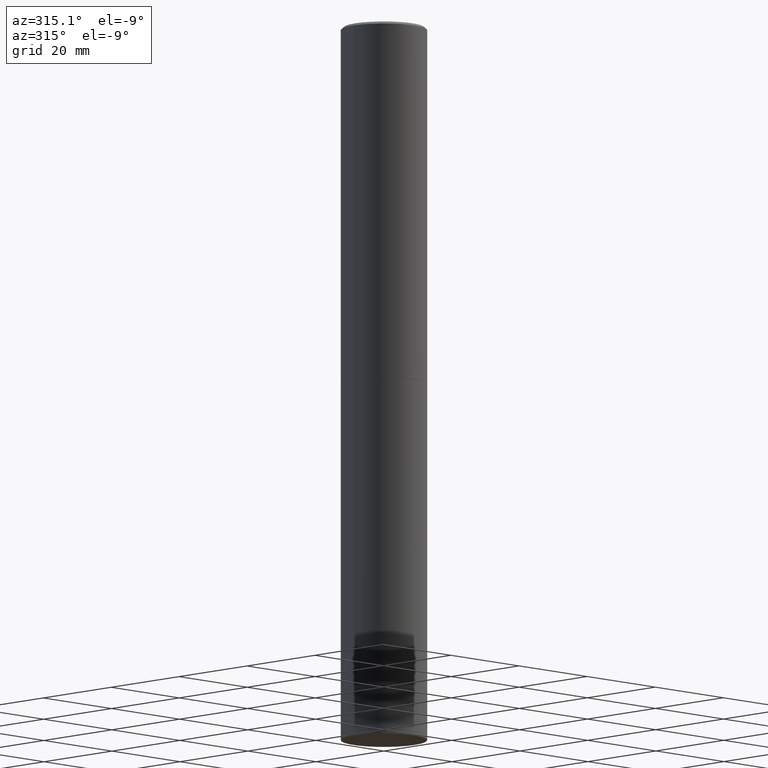
[diagram: clean part render]
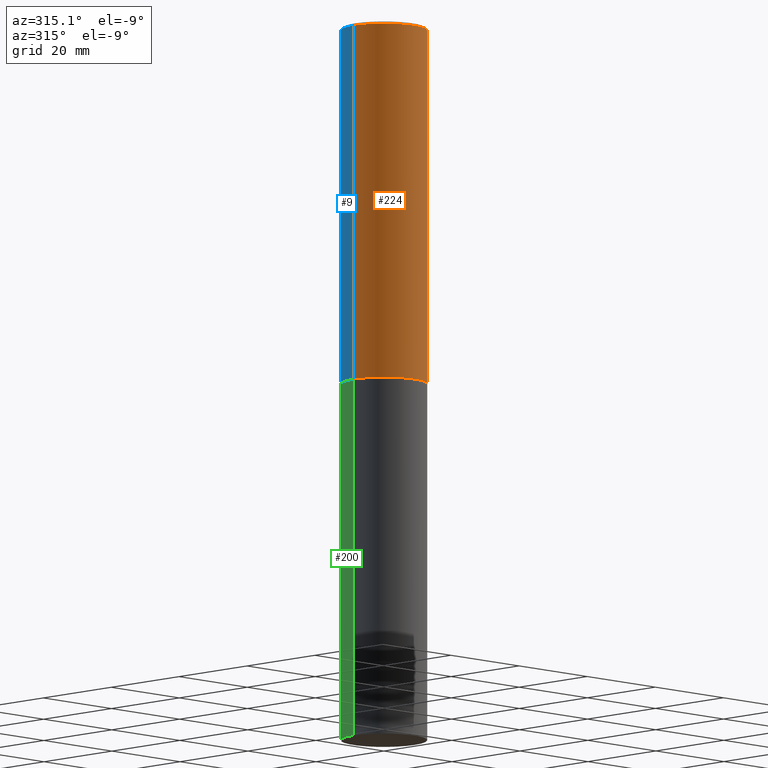
[diagram: same view with three faces highlighted in distinct colors, each labeled with its STEP entity id]
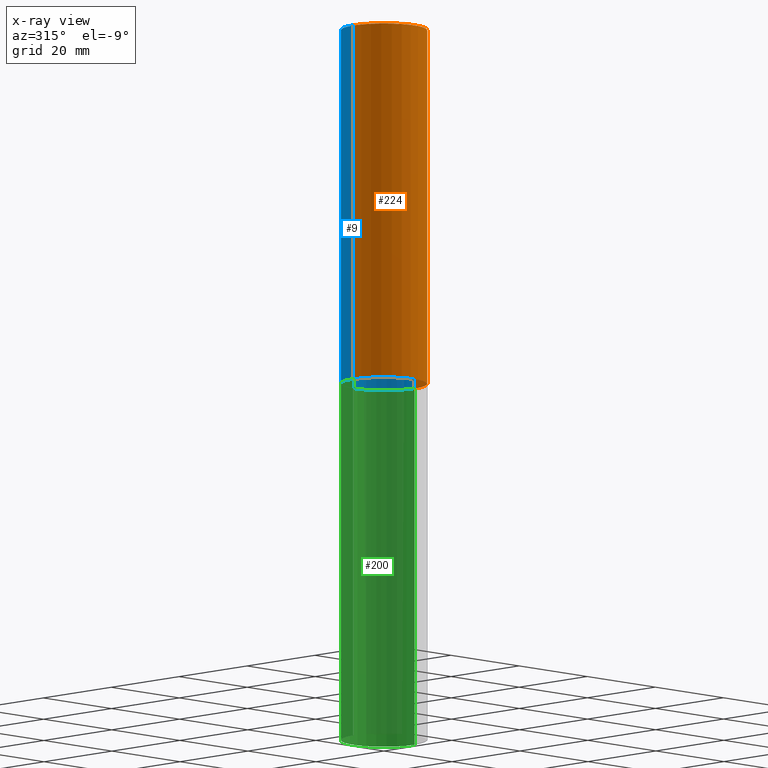
[diagram: x-ray of the same camera — body ghosted, the three highlighted faces saturated]
A machine part, auxiliary view with three faces highlighted in distinct colors.
The next image is the same camera in x-ray (body ghosted, the three faces saturated) — at least one of them is partly hidden behind the body in this view.
Their STEP definitions:

[orange] entity #224 — the highlighted cylindrical surface (partial cylindrical patch) has radius 9.0005 mm, axis along (-0, 0, 1).
#7 = VERTEX_POINT ( 'NONE', #331 ) ;
#13 = LINE ( 'NONE', #68, #166 ) ;
#47 = FACE_OUTER_BOUND ( 'NONE', #132, .T. ) ;
#56 = LINE ( 'NONE', #170, #153 ) ;
#68 = CARTESIAN_POINT ( 'NONE',  ( 0.3543499999999998873, -2.474412824838127905E-15, 1.727873240503289188E-29 ) ) ;
#74 = ORIENTED_EDGE ( 'NONE', *, *, #265, .T. ) ;
#85 = AXIS2_PLACEMENT_3D ( 'NONE', #168, #334, #249 ) ;
#103 = DIRECTION ( 'NONE',  ( -2.445468806185136597E-29, 3.491481338843145583E-15, 1.000000000000000000 ) ) ;
#104 = VERTEX_POINT ( 'NONE', #151 ) ;
#132 = EDGE_LOOP ( 'NONE', ( #329, #366, #74, #222 ) ) ;
#135 = CIRCLE ( 'NONE', #339, 0.3543499999999999983 ) ;
#151 = CARTESIAN_POINT ( 'NONE',  ( -0.3543499999999996652, 2.404583198061263029E-15, -0.02000000000000008021 ) ) ;
#153 = VECTOR ( 'NONE', #257, 39.37007874015748143 ) ;
#155 = CARTESIAN_POINT ( 'NONE',  ( 0.3543499999999996652, -2.500847092287203323E-15, -0.02000000000000008021 ) ) ;
#166 = VECTOR ( 'NONE', #294, 39.37007874015748143 ) ;
#168 = CARTESIAN_POINT ( 'NONE',  ( 4.890937612370293302E-31, -6.982962677686318726E-17, -0.02000000000000008021 ) ) ;
#170 = CARTESIAN_POINT ( 'NONE',  ( -0.3543499999999998873, 2.517808184165914208E-15, -1.743024649231825225E-29 ) ) ;
#177 = EDGE_CURVE ( 'NONE', #7, #104, #56, .T. ) ;
#179 = CARTESIAN_POINT ( 'NONE',  ( 7.218290275216666916E-29, -1.030580546786331359E-14, -2.951700000000000212 ) ) ;
#212 = CYLINDRICAL_SURFACE ( 'NONE', #321, 0.3543499999999998873 ) ;
#214 = DIRECTION ( 'NONE',  ( 1.000000000000000000, -6.982962677686265922E-15, 0.000000000000000000 ) ) ;
#222 = ORIENTED_EDGE ( 'NONE', *, *, #348, .F. ) ;
#224 = ADVANCED_FACE ( 'NONE', ( #47 ), #212, .T. ) ;
#240 = DIRECTION ( 'NONE',  ( -2.445468806185136597E-29, 3.491481338843145583E-15, 1.000000000000000000 ) ) ;
#242 = VERTEX_POINT ( 'NONE', #155 ) ;
#249 = DIRECTION ( 'NONE',  ( 1.000000000000000000, -6.982962677686266711E-15, 0.000000000000000000 ) ) ;
#257 = DIRECTION ( 'NONE',  ( -2.445468806185136877E-29, 3.491481338843145188E-15, 1.000000000000000000 ) ) ;
#265 = EDGE_CURVE ( 'NONE', #288, #242, #13, .T. ) ;
#266 = DIRECTION ( 'NONE',  ( 1.000000000000000000, -6.982962677686266711E-15, 4.876176775795935232E-29 ) ) ;
#267 = CIRCLE ( 'NONE', #85, 0.3543499999999996652 ) ;
#284 = EDGE_CURVE ( 'NONE', #7, #288, #135, .T. ) ;
#288 = VERTEX_POINT ( 'NONE', #326 ) ;
#294 = DIRECTION ( 'NONE',  ( -2.445468806185136877E-29, 3.491481338843145188E-15, 1.000000000000000000 ) ) ;
#321 = AXIS2_PLACEMENT_3D ( 'NONE', #325, #103, #266 ) ;
#325 = CARTESIAN_POINT ( 'NONE',  ( 0.000000000000000000, 0.000000000000000000, 0.000000000000000000 ) ) ;
#326 = CARTESIAN_POINT ( 'NONE',  ( 0.3543499999999999983, -1.278021829270144189E-14, -2.951700000000000212 ) ) ;
#329 = ORIENTED_EDGE ( 'NONE', *, *, #177, .F. ) ;
#331 = CARTESIAN_POINT ( 'NONE',  ( -0.3543499999999999983, -2.670009363154171868E-15, -2.951700000000000212 ) ) ;
#334 = DIRECTION ( 'NONE',  ( -2.445468806185136597E-29, 3.491481338843145583E-15, 1.000000000000000000 ) ) ;
#339 = AXIS2_PLACEMENT_3D ( 'NONE', #179, #240, #214 ) ;
#348 = EDGE_CURVE ( 'NONE', #104, #242, #267, .T. ) ;
#366 = ORIENTED_EDGE ( 'NONE', *, *, #284, .T. ) ;

[blue] entity #9 — the highlighted cylindrical surface (partial cylindrical patch) has radius 9.0005 mm, axis along (-0, 0, 1).
#7 = VERTEX_POINT ( 'NONE', #331 ) ;
#9 = ADVANCED_FACE ( 'NONE', ( #80 ), #299, .T. ) ;
#13 = LINE ( 'NONE', #68, #166 ) ;
#37 = DIRECTION ( 'NONE',  ( 1.000000000000000000, -6.982962677686266711E-15, 0.000000000000000000 ) ) ;
#56 = LINE ( 'NONE', #170, #153 ) ;
#68 = CARTESIAN_POINT ( 'NONE',  ( 0.3543499999999998873, -2.474412824838127905E-15, 1.727873240503289188E-29 ) ) ;
#71 = CARTESIAN_POINT ( 'NONE',  ( 4.890937612370293302E-31, -6.982962677686318726E-17, -0.02000000000000008021 ) ) ;
#80 = FACE_OUTER_BOUND ( 'NONE', #215, .T. ) ;
#101 = CIRCLE ( 'NONE', #307, 0.3543499999999996652 ) ;
#104 = VERTEX_POINT ( 'NONE', #151 ) ;
#115 = AXIS2_PLACEMENT_3D ( 'NONE', #141, #352, #254 ) ;
#138 = CARTESIAN_POINT ( 'NONE',  ( 0.000000000000000000, 0.000000000000000000, 0.000000000000000000 ) ) ;
#141 = CARTESIAN_POINT ( 'NONE',  ( 7.218290275216666916E-29, -1.030580546786331359E-14, -2.951700000000000212 ) ) ;
#151 = CARTESIAN_POINT ( 'NONE',  ( -0.3543499999999996652, 2.404583198061263029E-15, -0.02000000000000008021 ) ) ;
#153 = VECTOR ( 'NONE', #257, 39.37007874015748143 ) ;
#155 = CARTESIAN_POINT ( 'NONE',  ( 0.3543499999999996652, -2.500847092287203323E-15, -0.02000000000000008021 ) ) ;
#162 = ORIENTED_EDGE ( 'NONE', *, *, #303, .F. ) ;
#166 = VECTOR ( 'NONE', #294, 39.37007874015748143 ) ;
#170 = CARTESIAN_POINT ( 'NONE',  ( -0.3543499999999998873, 2.517808184165914208E-15, -1.743024649231825225E-29 ) ) ;
#177 = EDGE_CURVE ( 'NONE', #7, #104, #56, .T. ) ;
#184 = DIRECTION ( 'NONE',  ( -2.445468806185136597E-29, 3.491481338843145583E-15, 1.000000000000000000 ) ) ;
#210 = CIRCLE ( 'NONE', #115, 0.3543499999999999983 ) ;
#211 = ORIENTED_EDGE ( 'NONE', *, *, #265, .F. ) ;
#213 = ORIENTED_EDGE ( 'NONE', *, *, #177, .T. ) ;
#215 = EDGE_LOOP ( 'NONE', ( #238, #213, #162, #211 ) ) ;
#238 = ORIENTED_EDGE ( 'NONE', *, *, #344, .T. ) ;
#242 = VERTEX_POINT ( 'NONE', #155 ) ;
#250 = DIRECTION ( 'NONE',  ( -2.445468806185136597E-29, 3.491481338843145583E-15, 1.000000000000000000 ) ) ;
#254 = DIRECTION ( 'NONE',  ( 1.000000000000000000, -6.982962677686265922E-15, 0.000000000000000000 ) ) ;
#257 = DIRECTION ( 'NONE',  ( -2.445468806185136877E-29, 3.491481338843145188E-15, 1.000000000000000000 ) ) ;
#265 = EDGE_CURVE ( 'NONE', #288, #242, #13, .T. ) ;
#288 = VERTEX_POINT ( 'NONE', #326 ) ;
#294 = DIRECTION ( 'NONE',  ( -2.445468806185136877E-29, 3.491481338843145188E-15, 1.000000000000000000 ) ) ;
#299 = CYLINDRICAL_SURFACE ( 'NONE', #347, 0.3543499999999998873 ) ;
#303 = EDGE_CURVE ( 'NONE', #242, #104, #101, .T. ) ;
#307 = AXIS2_PLACEMENT_3D ( 'NONE', #71, #184, #37 ) ;
#326 = CARTESIAN_POINT ( 'NONE',  ( 0.3543499999999999983, -1.278021829270144189E-14, -2.951700000000000212 ) ) ;
#331 = CARTESIAN_POINT ( 'NONE',  ( -0.3543499999999999983, -2.670009363154171868E-15, -2.951700000000000212 ) ) ;
#344 = EDGE_CURVE ( 'NONE', #288, #7, #210, .T. ) ;
#347 = AXIS2_PLACEMENT_3D ( 'NONE', #138, #250, #356 ) ;
#352 = DIRECTION ( 'NONE',  ( -2.445468806185136597E-29, 3.491481338843145583E-15, 1.000000000000000000 ) ) ;
#356 = DIRECTION ( 'NONE',  ( 1.000000000000000000, -6.982962677686266711E-15, 4.876176775795935232E-29 ) ) ;

[green] entity #200 — the highlighted cylindrical surface (partial cylindrical patch) has radius 9.0005 mm, axis along (-0, 0, 1).
#10 = CARTESIAN_POINT ( 'NONE',  ( 0.3543499999999999983, -2.474412824838128694E-15, 1.727873240503289749E-29 ) ) ;
#18 = ORIENTED_EDGE ( 'NONE', *, *, #172, .T. ) ;
#20 = CARTESIAN_POINT ( 'NONE',  ( -0.3543499999999999983, -1.294631181370425968E-14, -5.905499999999999972 ) ) ;
#27 = AXIS2_PLACEMENT_3D ( 'NONE', #98, #90, #198 ) ;
#31 = AXIS2_PLACEMENT_3D ( 'NONE', #237, #297, #323 ) ;
#32 = DIRECTION ( 'NONE',  ( -2.445468806185136597E-29, 3.491481338843145583E-15, 1.000000000000000000 ) ) ;
#48 = VERTEX_POINT ( 'NONE', #271 ) ;
#59 = CIRCLE ( 'NONE', #31, 0.3543499999999999983 ) ;
#62 = CARTESIAN_POINT ( 'NONE',  ( 0.000000000000000000, 0.000000000000000000, 0.000000000000000000 ) ) ;
#69 = VERTEX_POINT ( 'NONE', #20 ) ;
#73 = DIRECTION ( 'NONE',  ( 1.000000000000000000, -6.982962677686266711E-15, 4.876176775795935793E-29 ) ) ;
#76 = VECTOR ( 'NONE', #196, 39.37007874015748143 ) ;
#79 = VERTEX_POINT ( 'NONE', #354 ) ;
#86 = CARTESIAN_POINT ( 'NONE',  ( -0.3543499999999999983, 2.517808184165914997E-15, -1.743024649231826066E-29 ) ) ;
#90 = DIRECTION ( 'NONE',  ( -2.445468806185136597E-29, 3.491481338843145583E-15, 1.000000000000000000 ) ) ;
#94 = FACE_OUTER_BOUND ( 'NONE', #183, .T. ) ;
#98 = CARTESIAN_POINT ( 'NONE',  ( 7.220735744022852519E-29, -1.030929694920215502E-14, -2.952700000000000102 ) ) ;
#128 = DIRECTION ( 'NONE',  ( -2.445468806185136877E-29, 3.491481338843145188E-15, 1.000000000000000000 ) ) ;
#134 = EDGE_CURVE ( 'NONE', #79, #48, #189, .T. ) ;
#156 = LINE ( 'NONE', #10, #336 ) ;
#165 = ORIENTED_EDGE ( 'NONE', *, *, #134, .F. ) ;
#172 = EDGE_CURVE ( 'NONE', #69, #48, #236, .T. ) ;
#183 = EDGE_LOOP ( 'NONE', ( #346, #18, #165, #185 ) ) ;
#185 = ORIENTED_EDGE ( 'NONE', *, *, #319, .F. ) ;
#189 = CIRCLE ( 'NONE', #27, 0.3543499999999999983 ) ;
#191 = VERTEX_POINT ( 'NONE', #221 ) ;
#196 = DIRECTION ( 'NONE',  ( -2.445468806185136877E-29, 3.491481338843145188E-15, 1.000000000000000000 ) ) ;
#198 = DIRECTION ( 'NONE',  ( 1.000000000000000000, -6.982962677686265922E-15, 0.000000000000000000 ) ) ;
#200 = ADVANCED_FACE ( 'NONE', ( #94 ), #201, .T. ) ;
#201 = CYLINDRICAL_SURFACE ( 'NONE', #285, 0.3543499999999999983 ) ;
#219 = EDGE_CURVE ( 'NONE', #191, #69, #59, .T. ) ;
#221 = CARTESIAN_POINT ( 'NONE',  ( 0.3543499999999999983, -2.309335587137632500E-14, -5.905499999999999972 ) ) ;
#236 = LINE ( 'NONE', #86, #76 ) ;
#237 = CARTESIAN_POINT ( 'NONE',  ( 1.444171603492632270E-28, -2.061894304653819197E-14, -5.905499999999999972 ) ) ;
#271 = CARTESIAN_POINT ( 'NONE',  ( -0.3543499999999999983, -1.294631181370425968E-14, -2.952700000000000102 ) ) ;
#285 = AXIS2_PLACEMENT_3D ( 'NONE', #62, #32, #73 ) ;
#297 = DIRECTION ( 'NONE',  ( -2.445468806185136597E-29, 3.491481338843145583E-15, 1.000000000000000000 ) ) ;
#319 = EDGE_CURVE ( 'NONE', #191, #79, #156, .T. ) ;
#323 = DIRECTION ( 'NONE',  ( 1.000000000000000000, -6.982962677686271444E-15, 0.000000000000000000 ) ) ;
#336 = VECTOR ( 'NONE', #128, 39.37007874015748143 ) ;
#346 = ORIENTED_EDGE ( 'NONE', *, *, #219, .T. ) ;
#354 = CARTESIAN_POINT ( 'NONE',  ( 0.3543499999999999983, -1.278370977404028332E-14, -2.952700000000000102 ) ) ;